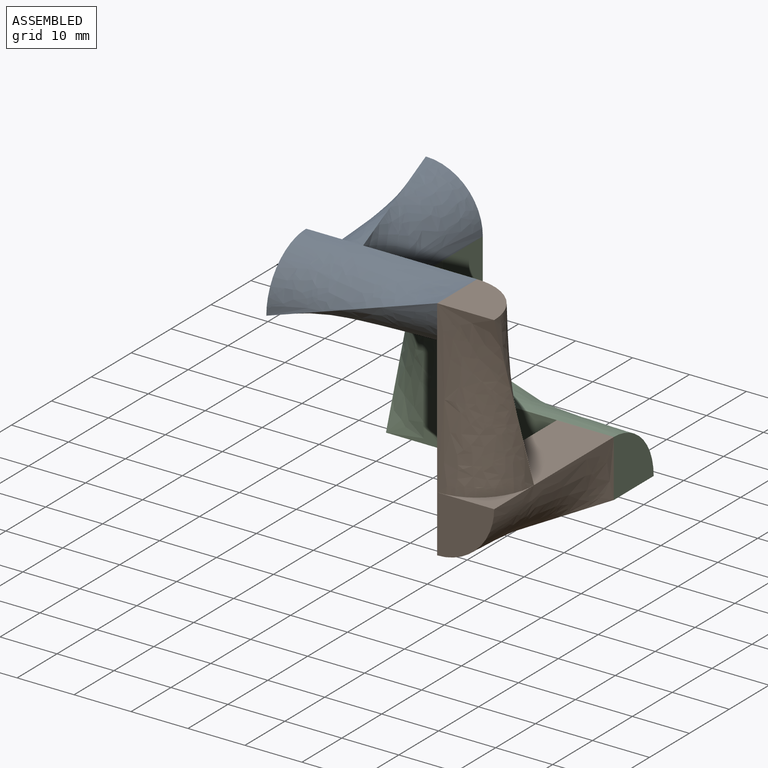
[diagram: assembled view]
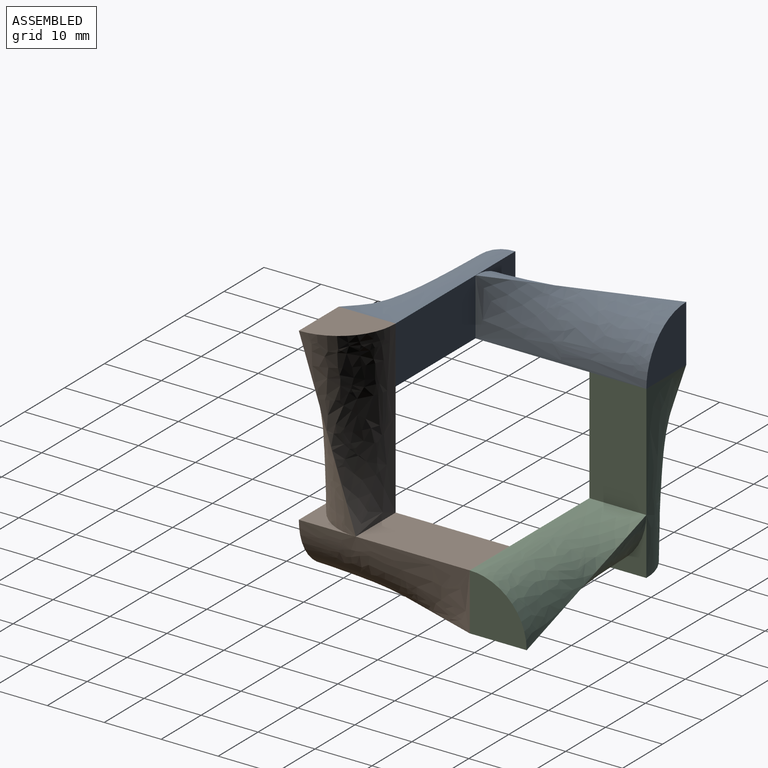
[diagram: assembled view, second angle]
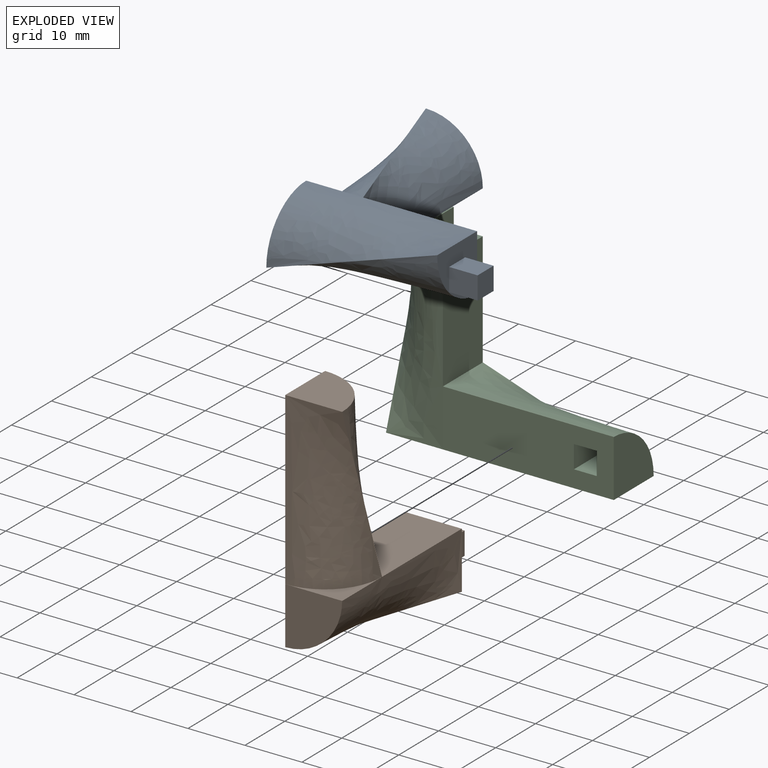
[diagram: exploded view]
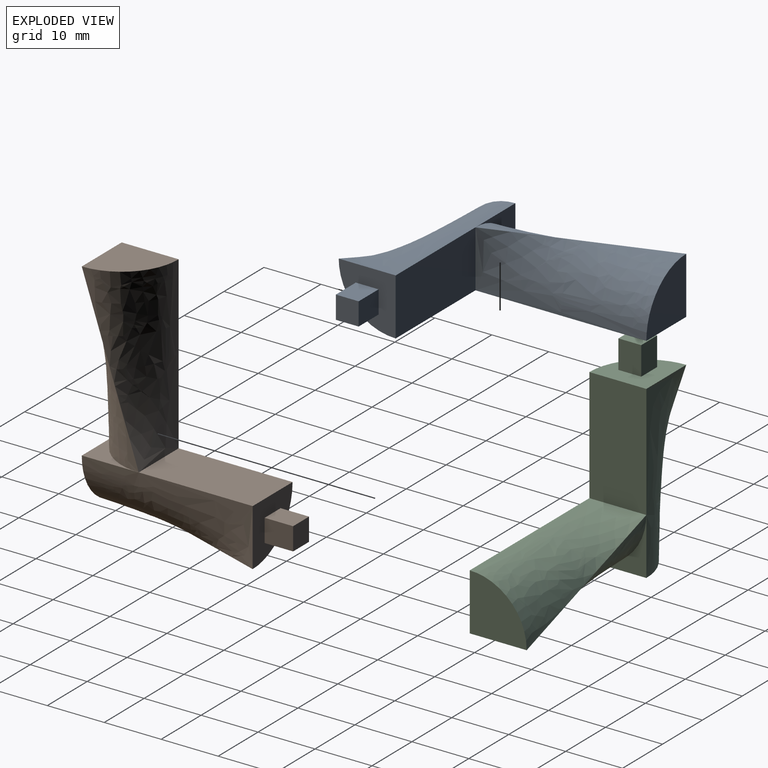
[diagram: exploded view, second angle]
ASSEMBLY  parts=3 mates=6
PART A: 20 faces, bbox 40x10x35 mm
  f0: plane 10x10mm, normal (0,0,1), area 62.5mm2, adj f4,f5,f6,f15,f16,f17,f18
  f1: plane 30x10mm, normal (0,-1,0), area 284mm2, adj f6,f7,f8,f9,f10,f11,f12,f13
  f2: plane 10x10mm, normal (1,0,0), area 21.5mm2, adj f3,f4,f8
  f3: plane 10x10mm, normal (0,0,-1), area 78.5mm2, adj f2,f4,f6
  f4: bspline ~30x10mm, area 363mm2, adj f0,f2,f3,f5,f6
  f5: plane 20x10mm, normal (1,0,0), area 200mm2, adj f0,f4,f6,f9
  f6: bspline ~30x10mm, area 363mm2, adj f0,f1,f3,f4,f5
  f7: plane 10x10mm, normal (1,0,0), area 78.5mm2, adj f1,f8,f9
  f8: bspline ~30x10mm, area 363mm2, adj f1,f2,f7,f9
  f9: bspline ~30x10mm, area 363mm2, adj f1,f5,f7,f8
  f10: plane 6x4mm, normal (0,0,-1), area 24mm2, adj f1,f11,f13,f14
  f11: plane 6x4mm, normal (1,0,0), area 24mm2, adj f1,f10,f12,f14
  f12: plane 6x4mm, normal (0,0,1), area 24mm2, adj f1,f11,f13,f14
  f13: plane 6x4mm, normal (-1,0,0), area 24mm2, adj f1,f10,f12,f14
  f14: plane 4x4mm, normal (0,-1,0), area 16mm2, adj f10,f11,f12,f13
  f15: plane 5x4mm, normal (0,1,0), area 20mm2, adj f0,f16,f18,f19
  f16: plane 5x4mm, normal (-1,0,0), area 20mm2, adj f0,f15,f17,f19
  f17: plane 5x4mm, normal (0,-1,0), area 20mm2, adj f0,f16,f18,f19
  f18: plane 5x4mm, normal (1,0,0), area 20mm2, adj f0,f15,f17,f19
  f19: plane 4x4mm, normal (0,0,1), area 16mm2, adj f15,f16,f17,f18
PART B: same geometry as A
PART C: same geometry as A
PLACE A rot(axis=(0.58,0.58,0.58),120deg) t=(6.86,-13.04,39.39)mm
PLACE B rot(axis=(-0.58,-0.58,-0.58),120deg) t=(36.86,-13.04,9.39)mm
PLACE C t=(6.86,16.96,9.39)mm
MATE planar B.f0 <-> C.f1  axis (0,1,0) through (41.86,16.96,19.39)mm
MATE planar A.f1 <-> C.f0  axis (0,0,-1) through (11.86,11.4,39.39)mm
MATE planar B.f16 <-> C.f12  axis (0,0,-1) through (41.86,19.46,12.39)mm
MATE planar C.f18 <-> A.f10  axis (1,0,0) through (13.86,21.96,41.89)mm
MATE planar A.f0 <-> B.f1  axis (1,0,0) through (36.86,-7.09,45.34)mm
MATE planar C.f15 <-> A.f13  axis (0,1,0) through (11.86,23.96,41.89)mm
